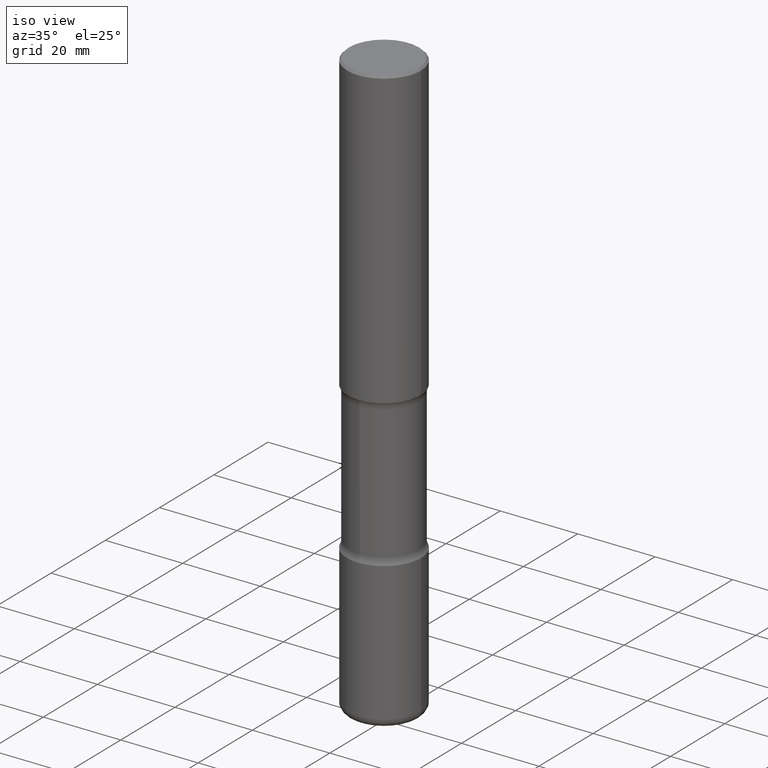
[diagram: clean part render]
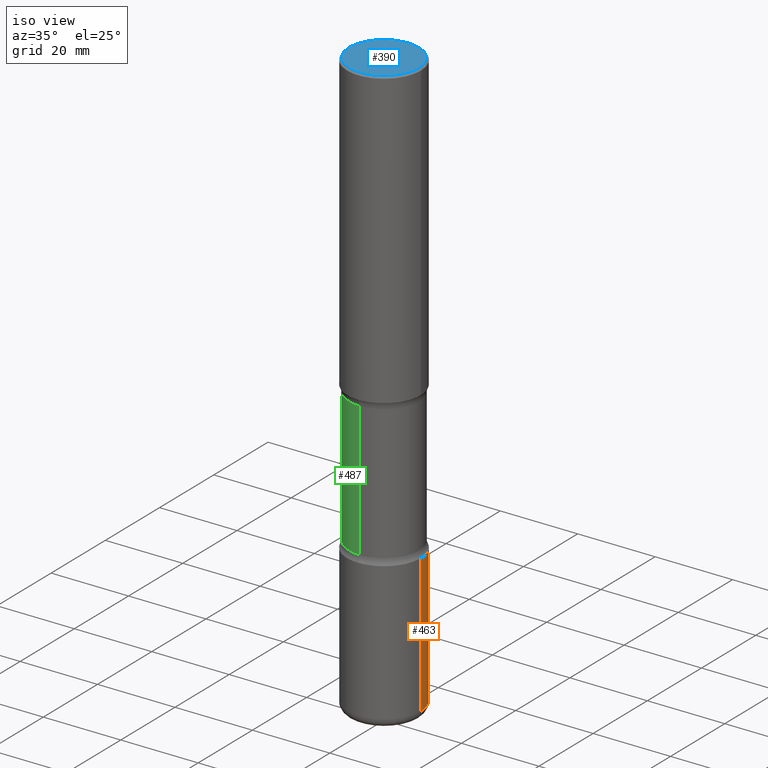
[diagram: same view with three faces highlighted in distinct colors, each labeled with its STEP entity id]
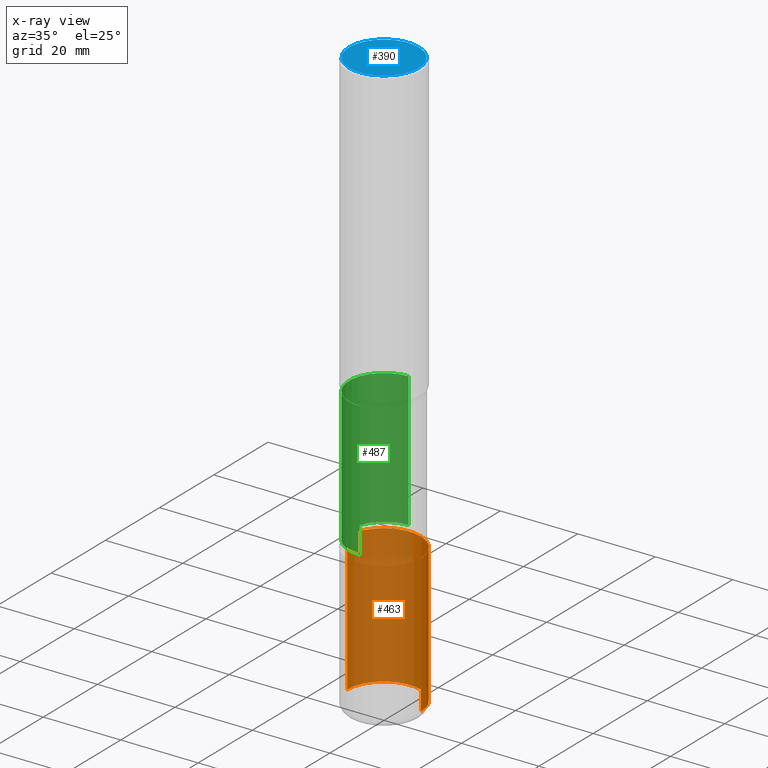
[diagram: x-ray of the same camera — body ghosted, the three highlighted faces saturated]
A machine part, iso view with three faces highlighted in distinct colors.
The next image is the same camera in x-ray (body ghosted, the three faces saturated) — at least one of them is partly hidden behind the body in this view.
Their STEP definitions:

[orange] entity #463 — the highlighted cylindrical surface (partial cylindrical patch) has radius 9.525 mm, axis along (-0, 0, 1).
#4 = EDGE_CURVE ( 'NONE', #153, #480, #57, .T. ) ;
#28 = DIRECTION ( 'NONE',  ( -2.445468806185136877E-29, 3.491481338843145188E-15, 1.000000000000000000 ) ) ;
#37 = EDGE_CURVE ( 'NONE', #185, #153, #166, .T. ) ;
#40 = ORIENTED_EDGE ( 'NONE', *, *, #4, .T. ) ;
#45 = DIRECTION ( 'NONE',  ( 1.000000000000000000, -6.982962677686265922E-15, 0.000000000000000000 ) ) ;
#54 = CYLINDRICAL_SURFACE ( 'NONE', #287, 0.3750000000000004441 ) ;
#57 = LINE ( 'NONE', #272, #175 ) ;
#60 = CARTESIAN_POINT ( 'NONE',  ( 0.3750000000000003886, -1.833027702892650691E-14, -4.499999999999999112 ) ) ;
#76 = VERTEX_POINT ( 'NONE', #60 ) ;
#92 = CARTESIAN_POINT ( 'NONE',  ( -0.3750000000000003886, -1.550862510957819116E-14, -4.499999999999999112 ) ) ;
#146 = DIRECTION ( 'NONE',  ( -2.445468806185136877E-29, 3.491481338843145188E-15, 1.000000000000000000 ) ) ;
#153 = VERTEX_POINT ( 'NONE', #383 ) ;
#166 = CIRCLE ( 'NONE', #219, 0.3750000000000004996 ) ;
#175 = VECTOR ( 'NONE', #146, 39.37007874015748143 ) ;
#176 = CIRCLE ( 'NONE', #314, 0.3750000000000003886 ) ;
#177 = CARTESIAN_POINT ( 'NONE',  ( 0.000000000000000000, 0.000000000000000000, 0.000000000000000000 ) ) ;
#183 = CARTESIAN_POINT ( 'NONE',  ( 1.445272064455415119E-28, -2.063465471256298313E-14, -5.909999999999997478 ) ) ;
#185 = VERTEX_POINT ( 'NONE', #559 ) ;
#219 = AXIS2_PLACEMENT_3D ( 'NONE', #183, #229, #238 ) ;
#229 = DIRECTION ( 'NONE',  ( -2.445468806185136597E-29, 3.491481338843145583E-15, 1.000000000000000000 ) ) ;
#238 = DIRECTION ( 'NONE',  ( 1.000000000000000000, -6.982962677686263555E-15, 0.000000000000000000 ) ) ;
#259 = FACE_OUTER_BOUND ( 'NONE', #361, .T. ) ;
#272 = CARTESIAN_POINT ( 'NONE',  ( -0.3750000000000004441, 2.664535259100378852E-15, -1.844600658845591840E-29 ) ) ;
#287 = AXIS2_PLACEMENT_3D ( 'NONE', #177, #344, #524 ) ;
#314 = AXIS2_PLACEMENT_3D ( 'NONE', #522, #525, #45 ) ;
#328 = ORIENTED_EDGE ( 'NONE', *, *, #37, .T. ) ;
#344 = DIRECTION ( 'NONE',  ( -2.445468806185136597E-29, 3.491481338843145583E-15, 1.000000000000000000 ) ) ;
#361 = EDGE_LOOP ( 'NONE', ( #328, #40, #503, #472 ) ) ;
#383 = CARTESIAN_POINT ( 'NONE',  ( -0.3750000000000006661, -1.797011945346260428E-14, -5.909999999999997478 ) ) ;
#386 = EDGE_CURVE ( 'NONE', #76, #480, #176, .T. ) ;
#418 = VECTOR ( 'NONE', #28, 39.37007874015748143 ) ;
#447 = LINE ( 'NONE', #529, #418 ) ;
#463 = ADVANCED_FACE ( 'NONE', ( #259 ), #54, .T. ) ;
#472 = ORIENTED_EDGE ( 'NONE', *, *, #489, .F. ) ;
#480 = VERTEX_POINT ( 'NONE', #92 ) ;
#489 = EDGE_CURVE ( 'NONE', #185, #76, #447, .T. ) ;
#503 = ORIENTED_EDGE ( 'NONE', *, *, #386, .F. ) ;
#522 = CARTESIAN_POINT ( 'NONE',  ( 1.100460962783311244E-28, -1.571166602479415374E-14, -4.499999999999999112 ) ) ;
#524 = DIRECTION ( 'NONE',  ( 1.000000000000000000, -6.982962677686265922E-15, 4.876176775795935793E-29 ) ) ;
#525 = DIRECTION ( 'NONE',  ( -2.445468806185136597E-29, 3.491481338843145583E-15, 1.000000000000000000 ) ) ;
#529 = CARTESIAN_POINT ( 'NONE',  ( 0.3750000000000004441, -2.618611004132352777E-15, 1.828566290923478164E-29 ) ) ;
#559 = CARTESIAN_POINT ( 'NONE',  ( 0.3750000000000006661, -2.325326571669533630E-14, -5.909999999999997478 ) ) ;

[blue] entity #390 — the highlighted planar face has unit normal (0, -0, -1).
#19 = EDGE_CURVE ( 'NONE', #446, #533, #492, .T. ) ;
#53 = AXIS2_PLACEMENT_3D ( 'NONE', #126, #389, #56 ) ;
#56 = DIRECTION ( 'NONE',  ( 1.000000000000000000, -6.982962677686266711E-15, 4.876231632511987623E-29 ) ) ;
#80 = AXIS2_PLACEMENT_3D ( 'NONE', #435, #135, #305 ) ;
#126 = CARTESIAN_POINT ( 'NONE',  ( -1.043851414335219820E-46, 1.490343170380447200E-32, 4.268512490100411279E-18 ) ) ;
#132 = EDGE_LOOP ( 'NONE', ( #141, #419 ) ) ;
#135 = DIRECTION ( 'NONE',  ( 2.438088387897960049E-29, -3.491481338843145188E-15, -1.000000000000000000 ) ) ;
#141 = ORIENTED_EDGE ( 'NONE', *, *, #428, .T. ) ;
#222 = PLANE ( 'NONE',  #80 ) ;
#226 = CARTESIAN_POINT ( 'NONE',  ( -1.043851414335219820E-46, 1.490343170380447200E-32, 4.268512490100411279E-18 ) ) ;
#290 = CIRCLE ( 'NONE', #53, 0.3550000000000000377 ) ;
#305 = DIRECTION ( 'NONE',  ( -1.000000000000000000, 6.982962677686265922E-15, -4.876176775795935793E-29 ) ) ;
#311 = CARTESIAN_POINT ( 'NONE',  ( -0.3550000000000000377, 2.513866563967055858E-15, 4.268512490082953109E-18 ) ) ;
#312 = AXIS2_PLACEMENT_3D ( 'NONE', #226, #318, #397 ) ;
#318 = DIRECTION ( 'NONE',  ( -2.445468806185136597E-29, 3.491481338843145583E-15, 1.000000000000000000 ) ) ;
#389 = DIRECTION ( 'NONE',  ( -2.445468806185136597E-29, 3.491481338843145583E-15, 1.000000000000000000 ) ) ;
#390 = ADVANCED_FACE ( 'NONE', ( #486 ), #222, .F. ) ;
#392 = CARTESIAN_POINT ( 'NONE',  ( 0.3550000000000000377, -2.538996582575041048E-15, 4.268512490117958041E-18 ) ) ;
#397 = DIRECTION ( 'NONE',  ( 1.000000000000000000, -6.982962677686266711E-15, 4.876231632511987623E-29 ) ) ;
#419 = ORIENTED_EDGE ( 'NONE', *, *, #19, .T. ) ;
#428 = EDGE_CURVE ( 'NONE', #533, #446, #290, .T. ) ;
#435 = CARTESIAN_POINT ( 'NONE',  ( 2.478951750578624998E-15, 0.3550000000000000377, -1.237341619044266624E-15 ) ) ;
#446 = VERTEX_POINT ( 'NONE', #392 ) ;
#486 = FACE_OUTER_BOUND ( 'NONE', #132, .T. ) ;
#492 = CIRCLE ( 'NONE', #312, 0.3550000000000000377 ) ;
#533 = VERTEX_POINT ( 'NONE', #311 ) ;

[green] entity #487 — the highlighted cylindrical surface (partial cylindrical patch) has radius 9.0488 mm, axis along (0, -0, -1).
#2 = CARTESIAN_POINT ( 'NONE',  ( -2.444052411705960129E-15, -0.3562500000000208278, -5.999999999999998224 ) ) ;
#66 = CARTESIAN_POINT ( 'NONE',  ( 2.487680453925879638E-15, 0.3562499999999791389, -6.000000000000000888 ) ) ;
#88 = DIRECTION ( 'NONE',  ( 2.508247471065963170E-29, -3.401578717594097873E-15, -1.000000000000000000 ) ) ;
#95 = DIRECTION ( 'NONE',  ( 6.982962677686265133E-15, 1.000000000000000000, -3.067338098149347905E-15 ) ) ;
#99 = AXIS2_PLACEMENT_3D ( 'NONE', #536, #450, #539 ) ;
#109 = LINE ( 'NONE', #66, #437 ) ;
#128 = CARTESIAN_POINT ( 'NONE',  ( 2.487680453925806274E-15, 0.3562499999999891309, -3.065847835955330503 ) ) ;
#131 = LINE ( 'NONE', #2, #144 ) ;
#133 = DIRECTION ( 'NONE',  ( 2.508247471065963170E-29, -3.401578717594097873E-15, -1.000000000000000000 ) ) ;
#134 = EDGE_CURVE ( 'NONE', #337, #502, #109, .T. ) ;
#144 = VECTOR ( 'NONE', #172, 39.37007874015748143 ) ;
#147 = FACE_OUTER_BOUND ( 'NONE', #294, .T. ) ;
#172 = DIRECTION ( 'NONE',  ( 2.508247471065963170E-29, -3.401578717594097873E-15, -1.000000000000000000 ) ) ;
#230 = ORIENTED_EDGE ( 'NONE', *, *, #375, .T. ) ;
#234 = CARTESIAN_POINT ( 'NONE',  ( 2.487680453925840195E-15, 0.3562499999999844680, -4.434152164044670386 ) ) ;
#235 = DIRECTION ( 'NONE',  ( 2.508247471065963170E-29, -3.401578717594097873E-15, -1.000000000000000000 ) ) ;
#249 = VERTEX_POINT ( 'NONE', #296 ) ;
#256 = CARTESIAN_POINT ( 'NONE',  ( 1.083944695982298980E-28, -1.548767942740887449E-14, -4.434152164044669497 ) ) ;
#263 = CARTESIAN_POINT ( 'NONE',  ( 7.407401089244291879E-29, -1.083328454578828421E-14, -3.065847835955329614 ) ) ;
#270 = CYLINDRICAL_SURFACE ( 'NONE', #99, 0.3562500000000000111 ) ;
#294 = EDGE_LOOP ( 'NONE', ( #339, #230, #359, #426 ) ) ;
#296 = CARTESIAN_POINT ( 'NONE',  ( -2.508369580435144205E-15, -0.3562500000000108358, -3.065847835955328282 ) ) ;
#300 = EDGE_CURVE ( 'NONE', #538, #502, #560, .T. ) ;
#337 = VERTEX_POINT ( 'NONE', #128 ) ;
#339 = ORIENTED_EDGE ( 'NONE', *, *, #409, .F. ) ;
#359 = ORIENTED_EDGE ( 'NONE', *, *, #134, .T. ) ;
#375 = EDGE_CURVE ( 'NONE', #249, #337, #421, .T. ) ;
#382 = AXIS2_PLACEMENT_3D ( 'NONE', #263, #88, #95 ) ;
#391 = DIRECTION ( 'NONE',  ( 6.982962677686265133E-15, 1.000000000000000000, -3.067338098149347905E-15 ) ) ;
#409 = EDGE_CURVE ( 'NONE', #249, #538, #131, .T. ) ;
#421 = CIRCLE ( 'NONE', #382, 0.3562500000000000111 ) ;
#426 = ORIENTED_EDGE ( 'NONE', *, *, #300, .F. ) ;
#432 = AXIS2_PLACEMENT_3D ( 'NONE', #256, #133, #391 ) ;
#437 = VECTOR ( 'NONE', #235, 39.37007874015748143 ) ;
#450 = DIRECTION ( 'NONE',  ( 2.508247471065963170E-29, -3.401578717594097873E-15, -1.000000000000000000 ) ) ;
#487 = ADVANCED_FACE ( 'NONE', ( #147 ), #270, .T. ) ;
#496 = CARTESIAN_POINT ( 'NONE',  ( -2.508369580435107128E-15, -0.3562500000000154987, -4.434152164044668609 ) ) ;
#502 = VERTEX_POINT ( 'NONE', #234 ) ;
#536 = CARTESIAN_POINT ( 'NONE',  ( 1.476698083443205790E-28, -2.081403410118529621E-14, -5.999999999999999112 ) ) ;
#538 = VERTEX_POINT ( 'NONE', #496 ) ;
#539 = DIRECTION ( 'NONE',  ( 6.982962677686265133E-15, 1.000000000000000000, -3.067338098149347905E-15 ) ) ;
#560 = CIRCLE ( 'NONE', #432, 0.3562500000000000111 ) ;